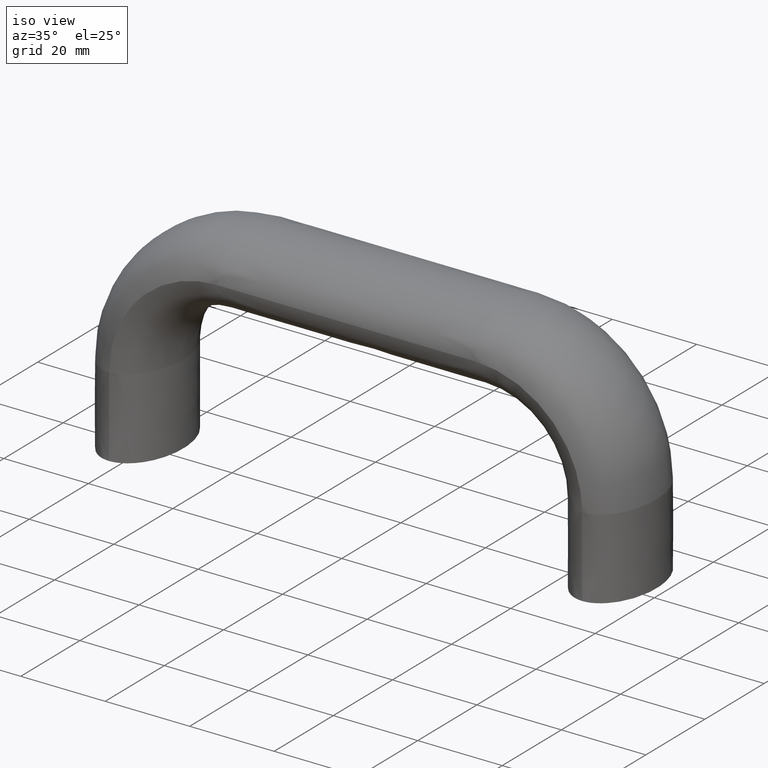
[diagram: clean part render]
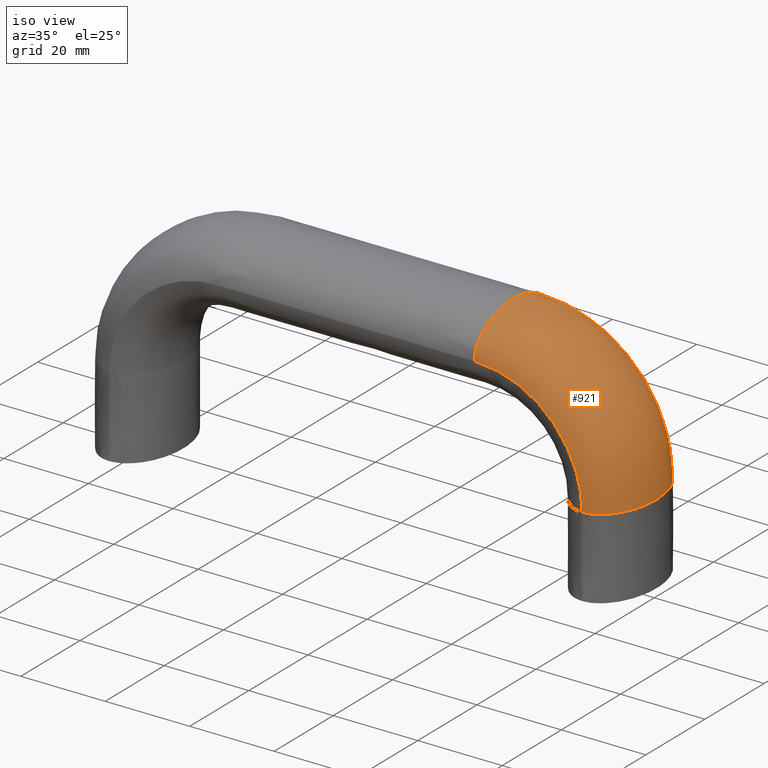
[diagram: same view with one face highlighted and labeled with its STEP entity id]
A machine part, iso view. The second image highlights one B-rep face of the part: STEP entity #921.
In plain terms, the highlighted face is a freeform B-spline surface patch.
Its self-contained STEP definition (entity closure, byte-faithful):
#465=CARTESIAN_POINT('',(115.619074295161400,11.762630261970060,19.000008000000001));
#466=VERTEX_POINT('',#465);
#467=CARTESIAN_POINT('',(112.0,-13.0,19.000008000000001));
#468=VERTEX_POINT('',#467);
#469=CARTESIAN_POINT('',(115.619074295161400,11.762630261970060,19.000008000000001));
#470=CARTESIAN_POINT('',(116.504805718325000,11.124518000535289,19.000008000000001));
#471=CARTESIAN_POINT('',(117.318058382314310,10.251275255545981,19.000008000000001));
#472=CARTESIAN_POINT('',(119.583928680683400,6.785826563922671,19.000008000000001));
#473=CARTESIAN_POINT('',(120.500000000000000,3.403392041388941,19.000008000000001));
#474=CARTESIAN_POINT('',(120.500000000000000,-3.403392041388945,19.000008000000001));
#475=CARTESIAN_POINT('',(119.583928680683400,-6.785826563922671,19.000008000000001));
#476=CARTESIAN_POINT('',(117.223647119786800,-10.395668951176340,19.000008000000001));
#477=CARTESIAN_POINT('',(116.280761333152600,-11.359223048605340,19.000008000000001));
#478=CARTESIAN_POINT('',(114.224857017054010,-12.661644796688099,19.000008000000001));
#479=CARTESIAN_POINT('',(113.112647398146390,-13.0,19.000008000000001));
#480=CARTESIAN_POINT('',(112.0,-13.0,19.000008000000001));
#481=B_SPLINE_CURVE_WITH_KNOTS('',3,(#469,#470,#471,#472,#473,#474,#475,#476,#477,#478,#479,#480),.UNSPECIFIED.,.F.,.U.,(4,2,2,2,2,4),(0.570000000007283,0.625000000000000,0.750000000000000,0.875000000000000,0.937500000000000,1.0),.UNSPECIFIED.);
#482=EDGE_CURVE('',#466,#468,#481,.T.);
#596=CARTESIAN_POINT('',(112.0,13.0,19.000008000000001));
#597=VERTEX_POINT('',#596);
#598=CARTESIAN_POINT('',(112.0,13.0,19.000008000000001));
#599=CARTESIAN_POINT('',(113.112647398146390,13.0,19.000008000000001));
#600=CARTESIAN_POINT('',(114.224857017054010,12.661644796688099,19.000008000000001));
#601=CARTESIAN_POINT('',(115.376163434189000,11.932288617685890,19.000008000000001));
#602=CARTESIAN_POINT('',(115.498292737523900,11.849645570299540,19.000008000000001));
#603=CARTESIAN_POINT('',(115.619074295161400,11.762630261970060,19.000008000000001));
#604=B_SPLINE_CURVE_WITH_KNOTS('',3,(#598,#599,#600,#601,#602,#603),.UNSPECIFIED.,.F.,.U.,(4,2,4),(0.500000000000000,0.562500000000000,0.570000000007282),.UNSPECIFIED.);
#605=EDGE_CURVE('',#597,#466,#604,.T.);
#639=CARTESIAN_POINT('',(108.380935499016500,11.762637318019101,19.000008000000001));
#640=VERTEX_POINT('',#639);
#656=CARTESIAN_POINT('',(108.380935499016500,11.762637318019101,19.000008000000001));
#657=CARTESIAN_POINT('',(108.501713864900910,11.849650038056430,19.000008000000001));
#658=CARTESIAN_POINT('',(108.623839900134000,11.932290729989900,19.000008000000001));
#659=CARTESIAN_POINT('',(109.775142982945990,12.661644796688099,19.000008000000001));
#660=CARTESIAN_POINT('',(110.887352601853610,13.0,19.000008000000001));
#661=CARTESIAN_POINT('',(112.0,13.0,19.000008000000001));
#662=B_SPLINE_CURVE_WITH_KNOTS('',3,(#656,#657,#658,#659,#660,#661),.UNSPECIFIED.,.F.,.U.,(4,2,4),(0.430000202721214,0.437500000000000,0.500000000000000),.UNSPECIFIED.);
#663=EDGE_CURVE('',#640,#597,#662,.T.);
#668=CARTESIAN_POINT('',(86.500000000000000,11.762630262096790,40.880933705014527));
#669=CARTESIAN_POINT('',(86.500000000000000,11.849645570460011,41.001715262713283));
#670=CARTESIAN_POINT('',(86.500000000000000,11.932288617761760,41.123844565930817));
#671=CARTESIAN_POINT('',(86.500000000000000,12.661644796688099,42.275150982946151));
#672=CARTESIAN_POINT('',(86.500000000000000,13.0,43.387360601853601));
#673=CARTESIAN_POINT('',(86.500000000000000,13.0,45.612655398146401));
#674=CARTESIAN_POINT('',(86.500000000000000,12.661644796688099,46.724865017053901));
#675=CARTESIAN_POINT('',(86.500000000000000,11.359223048605360,48.780769333152712));
#676=CARTESIAN_POINT('',(86.500000000000000,10.395668951176340,49.723655119786798));
#677=CARTESIAN_POINT('',(86.500000000000000,6.785826563922671,52.083936680683387));
#678=CARTESIAN_POINT('',(86.500000000000000,3.403392041388941,53.000008000000001));
#679=CARTESIAN_POINT('',(86.500000000000000,-3.403392041388945,53.000008000000001));
#680=CARTESIAN_POINT('',(86.500000000000000,-6.785826563922671,52.083936680683387));
#681=CARTESIAN_POINT('',(86.500000000000000,-10.395668951176340,49.723655119786798));
#682=CARTESIAN_POINT('',(86.500000000000000,-11.359223048605340,48.780769333152712));
#683=CARTESIAN_POINT('',(86.500000000000000,-12.661644796688099,46.724865017053901));
#684=CARTESIAN_POINT('',(86.500000000000000,-13.0,45.612655398146401));
#685=CARTESIAN_POINT('',(86.500000000000000,-13.0,44.500008000000001));
#686=CARTESIAN_POINT('',(89.364674765271857,11.762630262096790,40.880907748963693));
#687=CARTESIAN_POINT('',(89.380487619056254,11.849645570460011,41.001689086375322));
#688=CARTESIAN_POINT('',(89.396476921159120,11.932288617761760,41.123818166192223));
#689=CARTESIAN_POINT('',(89.547207217894211,12.661644796688099,42.275122471080941));
#690=CARTESIAN_POINT('',(89.692818918978091,13.0,43.387329997853051));
#691=CARTESIAN_POINT('',(89.984156950104108,13.0,45.612620510437701));
#692=CARTESIAN_POINT('',(90.129768651098487,12.661644796688099,46.724827943553898));
#693=CARTESIAN_POINT('',(90.398929894943308,11.359223048605360,48.780728148338802));
#694=CARTESIAN_POINT('',(90.522373534373912,10.395668951176340,49.723612020913997));
#695=CARTESIAN_POINT('',(90.831384180198000,6.785826563922671,52.083888718918097));
#696=CARTESIAN_POINT('',(90.951317240167000,3.403392041388941,52.999958125300402));
#697=CARTESIAN_POINT('',(90.951317240167000,-3.403392041388945,52.999958125300402));
#698=CARTESIAN_POINT('',(90.831384180198000,-6.785826563922671,52.083888718918097));
#699=CARTESIAN_POINT('',(90.522373534356504,-10.395668951176340,49.723612020901399));
#700=CARTESIAN_POINT('',(90.398929894943308,-11.359223048605340,48.780728148338802));
#701=CARTESIAN_POINT('',(90.129768651098487,-12.661644796688099,46.724827943553898));
#702=CARTESIAN_POINT('',(89.984156950104108,-13.0,45.612620510437701));
#703=CARTESIAN_POINT('',(89.838487934541106,-13.0,44.499975254139699));
#704=CARTESIAN_POINT('',(92.227286115701034,11.762630262096790,40.311431733566003));
#705=CARTESIAN_POINT('',(92.258900433476583,11.849645570460011,40.429069670370573));
#706=CARTESIAN_POINT('',(92.290867520796724,11.932288617761760,40.548020274483072));
#707=CARTESIAN_POINT('',(92.592219545210099,12.661644796688099,41.669361264850650));
#708=CARTESIAN_POINT('',(92.883338065225786,13.0,42.752623042198749));
#709=CARTESIAN_POINT('',(93.465804280871012,13.0,44.919999366910702));
#710=CARTESIAN_POINT('',(93.756922800886812,12.661644796688099,46.003261144247212));
#711=CARTESIAN_POINT('',(94.295051415910706,11.359223048605360,48.005655769903591));
#712=CARTESIAN_POINT('',(94.541849780253003,10.395668951176340,48.924000761443800));
#713=CARTESIAN_POINT('',(95.159648496608412,6.785826563922671,51.222850506328300));
#714=CARTESIAN_POINT('',(95.399428230723487,3.403392041388941,52.115078939410097));
#715=CARTESIAN_POINT('',(95.399428230723487,-3.403392041388945,52.115078939410097));
#716=CARTESIAN_POINT('',(95.159648496608412,-6.785826563922671,51.222850506328300));
#717=CARTESIAN_POINT('',(94.541849780276110,-10.395668951176340,48.924000761443800));
#718=CARTESIAN_POINT('',(94.295051415910706,-11.359223048605340,48.005655769903591));
#719=CARTESIAN_POINT('',(93.756922800886812,-12.661644796688099,46.003261144247212));
#720=CARTESIAN_POINT('',(93.465804280871012,-13.0,44.919999366910702));
#721=CARTESIAN_POINT('',(93.174571173048392,-13.0,43.836311204554733));
#722=CARTESIAN_POINT('',(97.519649388539960,11.762630262096790,38.119263088960032));
#723=CARTESIAN_POINT('',(97.580477272897511,11.849645570460011,38.224800370280867));
#724=CARTESIAN_POINT('',(97.641983907472678,11.932288617761760,38.331515293293478));
#725=CARTESIAN_POINT('',(98.221803665793999,12.661644796688099,39.337511171584602));
#726=CARTESIAN_POINT('',(98.781933534724303,13.0,40.309344799778152));
#727=CARTESIAN_POINT('',(99.902634220418008,13.0,42.253777107263751));
#728=CARTESIAN_POINT('',(100.462764089348200,12.661644796688099,43.225610735468848));
#729=CARTESIAN_POINT('',(101.498156514922000,11.359223048605360,45.022031946703002));
#730=CARTESIAN_POINT('',(101.973011688894600,10.395668951176340,45.845912714696901));
#731=CARTESIAN_POINT('',(103.161694270683000,6.785826563922671,47.908294619964799));
#732=CARTESIAN_POINT('',(103.623045170102600,3.403392041388941,48.708745271357401));
#733=CARTESIAN_POINT('',(103.623045170102600,-3.403392041388945,48.708745271357401));
#734=CARTESIAN_POINT('',(103.161694270683000,-6.785826563922671,47.908294619964799));
#735=CARTESIAN_POINT('',(101.973011688871400,-10.395668951176340,45.845912714696901));
#736=CARTESIAN_POINT('',(101.498156514922000,-11.359223048605340,45.022031946703002));
#737=CARTESIAN_POINT('',(100.462764089348200,-12.661644796688099,43.225610735468848));
#738=CARTESIAN_POINT('',(99.902634220418008,-13.0,42.253777107263751));
#739=CARTESIAN_POINT('',(99.342283877571163,-13.0,41.281560953520952));
#740=CARTESIAN_POINT('',(99.946851202094450,11.762630262096790,36.497458687215129));
#741=CARTESIAN_POINT('',(100.021077112653800,11.849645570460011,36.594043693637893));
#742=CARTESIAN_POINT('',(100.096131275806000,11.932288617761760,36.691706447459111));
#743=CARTESIAN_POINT('',(100.803662862282590,12.661644796688099,37.612368010372712));
#744=CARTESIAN_POINT('',(101.487167639574200,13.0,38.501765160341947));
#745=CARTESIAN_POINT('',(102.854715265749600,13.0,40.281259615350351));
#746=CARTESIAN_POINT('',(103.538220043041210,12.661644796688099,41.170656765319663));
#747=CARTESIAN_POINT('',(104.801669304606610,11.359223048605360,42.814695270522449));
#748=CARTESIAN_POINT('',(105.381116675547600,10.395668951176340,43.568689766820007));
#749=CARTESIAN_POINT('',(106.831619975648200,6.785826563922671,45.456128661158502));
#750=CARTESIAN_POINT('',(107.394588603557000,3.403392041388941,46.188680517139808));
#751=CARTESIAN_POINT('',(107.394588603557000,-3.403392041388945,46.188680517139808));
#752=CARTESIAN_POINT('',(106.831619975648200,-6.785826563922671,45.456128661158502));
#753=CARTESIAN_POINT('',(105.381116675547600,-10.395668951176340,43.568689766819958));
#754=CARTESIAN_POINT('',(104.801669304606610,-11.359223048605340,42.814695270522449));
#755=CARTESIAN_POINT('',(103.538220043041210,-12.661644796688099,41.170656765331202));
#756=CARTESIAN_POINT('',(102.854715265749600,-13.0,40.281259615361947));
#757=CARTESIAN_POINT('',(102.170941452661910,-13.0,39.391512387857723));
#758=CARTESIAN_POINT('',(103.997450687214890,11.762630262096790,32.446859202094693));
#759=CARTESIAN_POINT('',(104.094035693637590,11.849645570460011,32.521085112654049));
#760=CARTESIAN_POINT('',(104.191698447458800,11.932288617761760,32.596139275806252));
#761=CARTESIAN_POINT('',(105.112360010372400,12.661644796688099,33.303670862282900));
#762=CARTESIAN_POINT('',(106.001757160341800,13.0,33.987175639574453));
#763=CARTESIAN_POINT('',(107.781251615361600,13.0,35.354723265761550));
#764=CARTESIAN_POINT('',(108.670648765330990,12.661644796688099,36.038228043053053));
#765=CARTESIAN_POINT('',(110.314687270533800,11.359223048605360,37.301677304618501));
#766=CARTESIAN_POINT('',(111.068681766819590,10.395668951176340,37.881124675547802));
#767=CARTESIAN_POINT('',(112.956120661158200,6.785826563922671,39.331627975648452));
#768=CARTESIAN_POINT('',(113.688672517128000,3.403392041388941,39.894596603545700));
#769=CARTESIAN_POINT('',(113.688672517128000,-3.403392041388945,39.894596603545700));
#770=CARTESIAN_POINT('',(112.956120661158200,-6.785826563922671,39.331627975648452));
#771=CARTESIAN_POINT('',(111.068681766819590,-10.395668951176340,37.881124675547802));
#772=CARTESIAN_POINT('',(110.314687270533800,-11.359223048605340,37.301677304618501));
#773=CARTESIAN_POINT('',(108.670648765330990,-12.661644796688099,36.038228043041499));
#774=CARTESIAN_POINT('',(107.781251615361600,-13.0,35.354723265749953));
#775=CARTESIAN_POINT('',(106.891504387851700,-13.0,34.670949452656401));
#776=CARTESIAN_POINT('',(105.619255088971100,11.762630262096790,30.019657388522319));
#777=CARTESIAN_POINT('',(105.724792370292210,11.849645570460011,30.080485272880971));
#778=CARTESIAN_POINT('',(105.831507293304990,11.932288617761760,30.141991907457228));
#779=CARTESIAN_POINT('',(106.837503171596000,12.661644796688099,30.721811665788302));
#780=CARTESIAN_POINT('',(107.809336799789610,13.0,31.281941534701200));
#781=CARTESIAN_POINT('',(109.753769107275200,13.0,32.402642220394952));
#782=CARTESIAN_POINT('',(110.725602735468800,12.661644796688099,32.962772089313603));
#783=CARTESIAN_POINT('',(112.522023946703000,11.359223048605360,33.998164514893247));
#784=CARTESIAN_POINT('',(113.345904714708400,10.395668951176340,34.473019688860013));
#785=CARTESIAN_POINT('',(115.408286619988000,6.785826563922671,35.661702270660001));
#786=CARTESIAN_POINT('',(116.208737271369000,3.403392041388941,36.123053170067948));
#787=CARTESIAN_POINT('',(116.208737271369000,-3.403392041388945,36.123053170067948));
#788=CARTESIAN_POINT('',(115.408286619964600,-6.785826563922671,35.661702270660001));
#789=CARTESIAN_POINT('',(113.345904714708400,-10.395668951176340,34.473019688860013));
#790=CARTESIAN_POINT('',(112.522023946703000,-11.359223048605340,33.998164514893247));
#791=CARTESIAN_POINT('',(110.725602735468800,-12.661644796688099,32.962772089313603));
#792=CARTESIAN_POINT('',(109.753769107275200,-13.0,32.402642220400750));
#793=CARTESIAN_POINT('',(108.781552953532400,-13.0,31.842291877550970));
#794=CARTESIAN_POINT('',(107.811423733554800,11.762630262096790,24.727294115718781));
#795=CARTESIAN_POINT('',(107.929061670359100,11.849645570460011,24.758908433493239));
#796=CARTESIAN_POINT('',(108.048012274471400,11.932288617761760,24.790875520812289));
#797=CARTESIAN_POINT('',(109.169353264839000,12.661644796688099,25.092227545215948));
#798=CARTESIAN_POINT('',(110.252615042187000,13.0,25.383346065249050));
#799=CARTESIAN_POINT('',(112.419991366899000,13.0,25.965812280894301));
#800=CARTESIAN_POINT('',(113.503253144247200,12.661644796688099,26.256930800921602));
#801=CARTESIAN_POINT('',(115.505647769903400,11.359223048605360,26.795059415939750));
#802=CARTESIAN_POINT('',(116.423992761432200,10.395668951176340,27.041857780287799));
#803=CARTESIAN_POINT('',(118.722842506305000,6.785826563922671,27.659656496631701));
#804=CARTESIAN_POINT('',(119.615070939398390,3.403392041388941,27.899436230758351));
#805=CARTESIAN_POINT('',(119.615070939398390,-3.403392041388945,27.899436230758351));
#806=CARTESIAN_POINT('',(118.722842506328210,-6.785826563922671,27.659656496631701));
#807=CARTESIAN_POINT('',(116.423992761432200,-10.395668951176340,27.041857780287799));
#808=CARTESIAN_POINT('',(115.505647769903400,-11.359223048605340,26.795059415939750));
#809=CARTESIAN_POINT('',(113.503253144247200,-12.661644796688099,26.256930800921602));
#810=CARTESIAN_POINT('',(112.419991366899000,-13.0,25.965812280888500));
#811=CARTESIAN_POINT('',(111.336303204543000,-13.0,25.674579173068778));
#812=CARTESIAN_POINT('',(108.380899749098500,11.762630262096790,21.864682765258660));
#813=CARTESIAN_POINT('',(108.501681086510300,11.849645570460011,21.880495619043881));
#814=CARTESIAN_POINT('',(108.623810166327200,11.932288617761760,21.896484921147579));
#815=CARTESIAN_POINT('',(109.775114471213600,12.661644796688099,22.047215217889999));
#816=CARTESIAN_POINT('',(110.887321997977590,13.0,22.192826918960900));
#817=CARTESIAN_POINT('',(113.112612510579590,13.0,22.484164950086999));
#818=CARTESIAN_POINT('',(114.224819943698610,12.661644796688099,22.629776651072600));
#819=CARTESIAN_POINT('',(116.280720148513590,11.359223048605360,22.898937894921850));
#820=CARTESIAN_POINT('',(117.223604021078600,10.395668951176340,23.022381534348000));
#821=CARTESIAN_POINT('',(119.583880719061990,6.785826563922671,23.331392180180849));
#822=CARTESIAN_POINT('',(120.499950125446010,3.403392041388941,23.451325240141099));
#823=CARTESIAN_POINT('',(120.499950125446010,-3.403392041388945,23.451325240141099));
#824=CARTESIAN_POINT('',(119.583880719088200,-6.785826563922671,23.331392180180849));
#825=CARTESIAN_POINT('',(117.223604021053210,-10.395668951176340,23.022381534348000));
#826=CARTESIAN_POINT('',(116.280720148513590,-11.359223048605340,22.898937894921850));
#827=CARTESIAN_POINT('',(114.224819943698610,-12.661644796688099,22.629776651072600));
#828=CARTESIAN_POINT('',(113.112612510579590,-13.0,22.484164950091351));
#829=CARTESIAN_POINT('',(111.999967254278600,-13.0,22.338495934526119));
#830=CARTESIAN_POINT('',(108.380925705014410,11.762630262096790,19.000008000000001));
#831=CARTESIAN_POINT('',(108.501707262713100,11.849645570460011,19.000008000000001));
#832=CARTESIAN_POINT('',(108.623836565930700,11.932288617761760,19.000008000000001));
#833=CARTESIAN_POINT('',(109.775142982945990,12.661644796688099,19.000008000000001));
#834=CARTESIAN_POINT('',(110.887352601853610,13.0,19.000008000000001));
#835=CARTESIAN_POINT('',(113.112647398146390,13.0,19.000008000000001));
#836=CARTESIAN_POINT('',(114.224857017054010,12.661644796688099,19.000008000000001));
#837=CARTESIAN_POINT('',(116.280761333152600,11.359223048605360,19.000008000000001));
#838=CARTESIAN_POINT('',(117.223647119786800,10.395668951176340,19.000008000000001));
#839=CARTESIAN_POINT('',(119.583928680683400,6.785826563922671,19.000008000000001));
#840=CARTESIAN_POINT('',(120.500000000000000,3.403392041388941,19.000008000000001));
#841=CARTESIAN_POINT('',(120.500000000000000,-3.403392041388945,19.000008000000001));
#842=CARTESIAN_POINT('',(119.583928680683400,-6.785826563922671,19.000008000000001));
#843=CARTESIAN_POINT('',(117.223647119786800,-10.395668951176340,19.000008000000001));
#844=CARTESIAN_POINT('',(116.280761333152600,-11.359223048605340,19.000008000000001));
#845=CARTESIAN_POINT('',(114.224857017054010,-12.661644796688099,19.000008000000001));
#846=CARTESIAN_POINT('',(113.112647398146390,-13.0,19.000008000000001));
#847=CARTESIAN_POINT('',(112.0,-13.0,19.000008000000001));
#848=B_SPLINE_SURFACE_WITH_KNOTS('',3,3,((#668,#686,#704,#722,#740,#758,#776,#794,#812,#830),(#669,#687,#705,#723,#741,#759,#777,#795,#813,#831),(#670,#688,#706,#724,#742,#760,#778,#796,#814,#832),(#671,#689,#707,#725,#743,#761,#779,#797,#815,#833),(#672,#690,#708,#726,#744,#762,#780,#798,#816,#834),(#673,#691,#709,#727,#745,#763,#781,#799,#817,#835),(#674,#692,#710,#728,#746,#764,#782,#800,#818,#836),(#675,#693,#711,#729,#747,#765,#783,#801,#819,#837),(#676,#694,#712,#730,#748,#766,#784,#802,#820,#838),(#677,#695,#713,#731,#749,#767,#785,#803,#821,#839),(#678,#696,#714,#732,#750,#768,#786,#804,#822,#840),(#679,#697,#715,#733,#751,#769,#787,#805,#823,#841),(#680,#698,#716,#734,#752,#770,#788,#806,#824,#842),(#681,#699,#717,#735,#753,#771,#789,#807,#825,#843),(#682,#700,#718,#736,#754,#772,#790,#808,#826,#844),(#683,#701,#719,#737,#755,#773,#791,#809,#827,#845),(#684,#702,#720,#738,#756,#774,#792,#810,#828,#846),(#685,#703,#721,#739,#757,#775,#793,#811,#829,#847)),.UNSPECIFIED.,.F.,.F.,.U.,(4,2,2,2,2,2,2,2,4),(4,2,2,2,4),(0.0,0.600209731613888,5.601957495062953,10.603705258512020,15.605453021961081,25.608948548859210,35.612444075757352,40.614191839206413,45.615939602655473),(0.0,13.237780774992590,26.475561549985180,39.713342324977774,52.951123099970097),.UNSPECIFIED.);
#849=ORIENTED_EDGE('',*,*,#663,.F.);
#850=CARTESIAN_POINT('',(86.500000000000000,11.762637318019101,40.880943499016666));
#851=VERTEX_POINT('',#850);
#852=CARTESIAN_POINT('',(86.500000000000000,11.762637318019101,40.880943499016666));
#853=CARTESIAN_POINT('',(89.364675406398391,11.762637318019101,40.880916901839278));
#854=CARTESIAN_POINT('',(92.227287524936571,11.762637318019101,40.311440118332612));
#855=CARTESIAN_POINT('',(97.519652472830785,11.762637318019101,38.119269798671333));
#856=CARTESIAN_POINT('',(99.946855192562126,11.762637318019101,36.497464490749600));
#857=CARTESIAN_POINT('',(103.997456490749300,11.762637318019101,32.446863192562347));
#858=CARTESIAN_POINT('',(105.619261798682400,11.762637318019101,30.019660472813172));
#859=CARTESIAN_POINT('',(107.811432118321410,11.762637318019101,24.727295524954311));
#860=CARTESIAN_POINT('',(108.380908901974100,11.762637318019101,21.864683406385218));
#861=CARTESIAN_POINT('',(108.380935499016500,11.762637318019101,19.000008000000001));
#862=B_SPLINE_CURVE_WITH_KNOTS('',3,(#852,#853,#854,#855,#856,#857,#858,#859,#860,#861),.UNSPECIFIED.,.F.,.U.,(4,2,2,2,4),(0.670285818474701,0.726194430140404,0.782103041806107,0.838011653471810,0.893920265137512),.UNSPECIFIED.);
#863=EDGE_CURVE('',#851,#640,#862,.T.);
#864=ORIENTED_EDGE('',*,*,#863,.F.);
#865=CARTESIAN_POINT('',(86.500000000000000,13.0,44.500008000000001));
#866=VERTEX_POINT('',#865);
#867=CARTESIAN_POINT('',(86.500000000000000,11.762637318019101,40.880943499016666));
#868=CARTESIAN_POINT('',(86.500000000000000,11.849650038056430,41.001721864901022));
#869=CARTESIAN_POINT('',(86.500000000000000,11.932290729989900,41.123847900134180));
#870=CARTESIAN_POINT('',(86.500000000000000,12.661644796688099,42.275150982946151));
#871=CARTESIAN_POINT('',(86.500000000000000,13.0,43.387360601853601));
#872=CARTESIAN_POINT('',(86.500000000000000,13.0,44.500008000000001));
#873=B_SPLINE_CURVE_WITH_KNOTS('',3,(#867,#868,#869,#870,#871,#872),.UNSPECIFIED.,.F.,.U.,(4,2,4),(0.430000202721214,0.437500000000000,0.500000000000000),.UNSPECIFIED.);
#874=EDGE_CURVE('',#851,#866,#873,.T.);
#875=ORIENTED_EDGE('',*,*,#874,.T.);
#876=CARTESIAN_POINT('',(86.500000000000000,11.762630261970060,48.119082295161462));
#877=VERTEX_POINT('',#876);
#878=CARTESIAN_POINT('',(86.500000000000000,13.0,44.500008000000001));
#879=CARTESIAN_POINT('',(86.500000000000000,13.0,45.612655398146401));
#880=CARTESIAN_POINT('',(86.500000000000000,12.661644796688099,46.724865017053901));
#881=CARTESIAN_POINT('',(86.500000000000000,11.932288617685890,47.876171434188997));
#882=CARTESIAN_POINT('',(86.500000000000000,11.849645570299540,47.998300737523941));
#883=CARTESIAN_POINT('',(86.500000000000000,11.762630261970060,48.119082295161462));
#884=B_SPLINE_CURVE_WITH_KNOTS('',3,(#878,#879,#880,#881,#882,#883),.UNSPECIFIED.,.F.,.U.,(4,2,4),(0.500000000000000,0.562500000000000,0.570000000007282),.UNSPECIFIED.);
#885=EDGE_CURVE('',#866,#877,#884,.T.);
#886=ORIENTED_EDGE('',*,*,#885,.T.);
#887=CARTESIAN_POINT('',(86.500000000000000,-13.0,44.500008000000001));
#888=VERTEX_POINT('',#887);
#889=CARTESIAN_POINT('',(86.500000000000000,11.762630261970060,48.119082295161462));
#890=CARTESIAN_POINT('',(86.500000000000000,11.124518000535289,49.004813718325039));
#891=CARTESIAN_POINT('',(86.500000000000000,10.251275255545981,49.818066382314342));
#892=CARTESIAN_POINT('',(86.500000000000000,6.785826563922671,52.083936680683387));
#893=CARTESIAN_POINT('',(86.500000000000000,3.403392041388941,53.000008000000001));
#894=CARTESIAN_POINT('',(86.500000000000000,-3.403392041388945,53.000008000000001));
#895=CARTESIAN_POINT('',(86.500000000000000,-6.785826563922671,52.083936680683387));
#896=CARTESIAN_POINT('',(86.500000000000000,-10.395668951176340,49.723655119786798));
#897=CARTESIAN_POINT('',(86.500000000000000,-11.359223048605340,48.780769333152712));
#898=CARTESIAN_POINT('',(86.500000000000000,-12.661644796688099,46.724865017053901));
#899=CARTESIAN_POINT('',(86.500000000000000,-13.0,45.612655398146401));
#900=CARTESIAN_POINT('',(86.500000000000000,-13.0,44.500008000000001));
#901=B_SPLINE_CURVE_WITH_KNOTS('',3,(#889,#890,#891,#892,#893,#894,#895,#896,#897,#898,#899,#900),.UNSPECIFIED.,.F.,.U.,(4,2,2,2,2,4),(0.570000000007283,0.625000000000000,0.750000000000000,0.875000000000000,0.937500000000000,1.0),.UNSPECIFIED.);
#902=EDGE_CURVE('',#877,#888,#901,.T.);
#903=ORIENTED_EDGE('',*,*,#902,.T.);
#904=CARTESIAN_POINT('',(86.500000000000000,-13.0,44.500008000000001));
#905=CARTESIAN_POINT('',(89.838487934541106,-13.0,44.499975254139699));
#906=CARTESIAN_POINT('',(93.174571173048392,-13.0,43.836311204554733));
#907=CARTESIAN_POINT('',(99.342283877571163,-13.0,41.281560953520952));
#908=CARTESIAN_POINT('',(102.170941452661910,-13.0,39.391512387857723));
#909=CARTESIAN_POINT('',(106.891504387851700,-13.0,34.670949452656401));
#910=CARTESIAN_POINT('',(108.781552953532400,-13.0,31.842291877550970));
#911=CARTESIAN_POINT('',(111.336303204543000,-13.0,25.674579173068778));
#912=CARTESIAN_POINT('',(111.999967254278600,-13.0,22.338495934526119));
#913=CARTESIAN_POINT('',(112.0,-13.0,19.000008000000001));
#914=B_SPLINE_CURVE_WITH_KNOTS('',3,(#904,#905,#906,#907,#908,#909,#910,#911,#912,#913),.UNSPECIFIED.,.F.,.U.,(4,2,2,2,4),(0.670285818474701,0.726194430140404,0.782103041806107,0.838011653471810,0.893920265137512),.UNSPECIFIED.);
#915=EDGE_CURVE('',#888,#468,#914,.T.);
#916=ORIENTED_EDGE('',*,*,#915,.T.);
#917=ORIENTED_EDGE('',*,*,#482,.F.);
#918=ORIENTED_EDGE('',*,*,#605,.F.);
#919=EDGE_LOOP('',(#849,#864,#875,#886,#903,#916,#917,#918));
#920=FACE_OUTER_BOUND('',#919,.T.);
#921=ADVANCED_FACE('',(#920),#848,.T.);